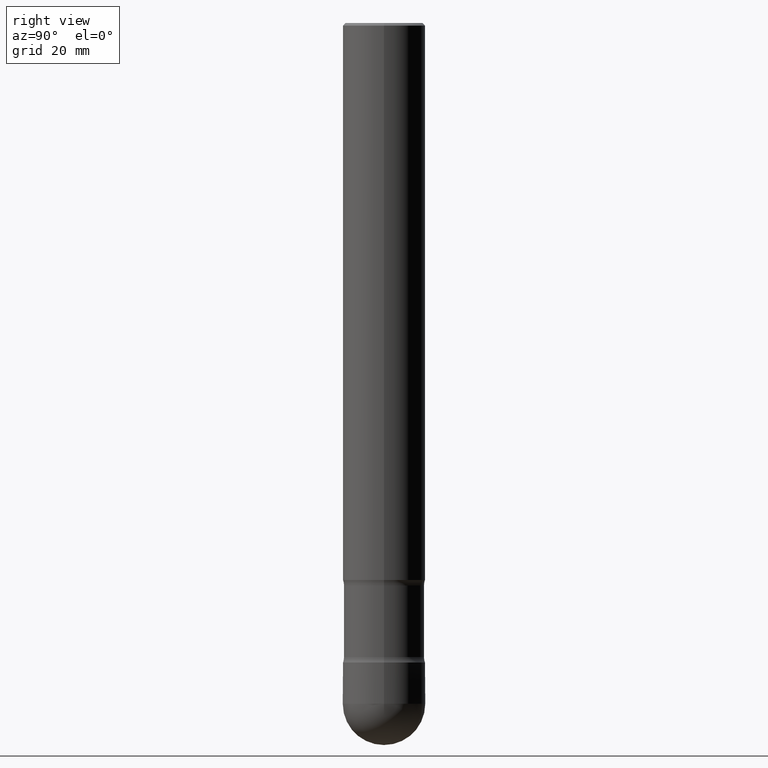
[diagram: clean part render]
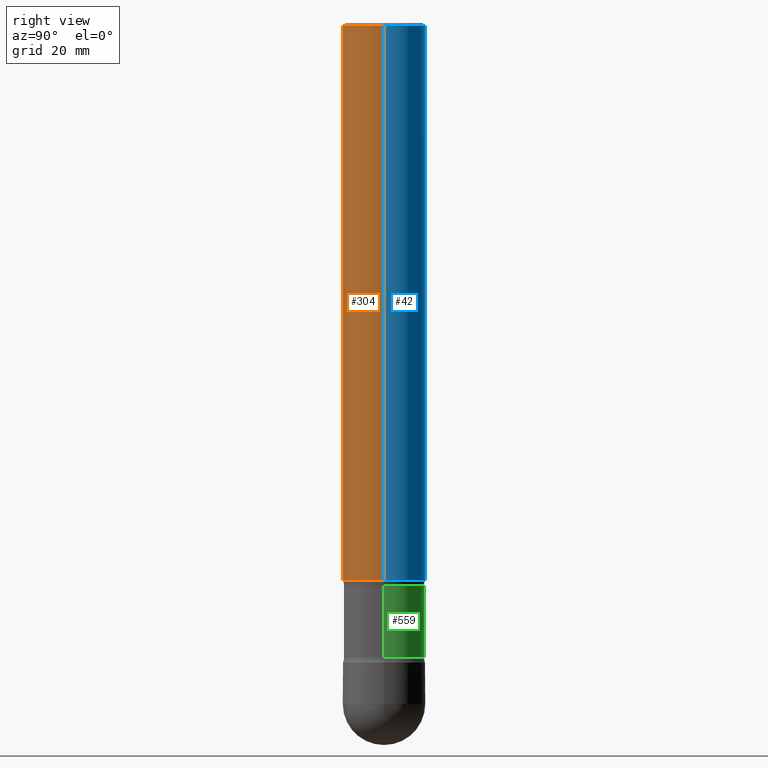
[diagram: same view with three faces highlighted in distinct colors, each labeled with its STEP entity id]
A machine part, right view with three faces highlighted in distinct colors.
Their STEP definitions:

[orange] entity #304 — the highlighted cylindrical surface (partial cylindrical patch) has radius 7.9997 mm, axis along (0, -0, -1).
#13 = EDGE_CURVE ( 'NONE', #127, #541, #102, .T. ) ;
#15 = DIRECTION ( 'NONE',  ( 2.445468806185136597E-29, -3.491481338843145583E-15, -1.000000000000000000 ) ) ;
#22 = DIRECTION ( 'NONE',  ( -1.000000000000000000, 6.982962677686263555E-15, 0.000000000000000000 ) ) ;
#72 = CYLINDRICAL_SURFACE ( 'NONE', #156, 0.3149499999999997857 ) ;
#90 = ORIENTED_EDGE ( 'NONE', *, *, #176, .F. ) ;
#102 = CIRCLE ( 'NONE', #435, 0.3149499999999996191 ) ;
#127 = VERTEX_POINT ( 'NONE', #359 ) ;
#132 = VECTOR ( 'NONE', #154, 39.37007874015748143 ) ;
#137 = CARTESIAN_POINT ( 'NONE',  ( -0.3149500000000000077, -1.264649455742376812E-14, -4.252000000000000668 ) ) ;
#151 = DIRECTION ( 'NONE',  ( -1.000000000000000000, 6.982962677686265922E-15, 0.000000000000000000 ) ) ;
#152 = AXIS2_PLACEMENT_3D ( 'NONE', #285, #15, #22 ) ;
#154 = DIRECTION ( 'NONE',  ( 2.445468806185136877E-29, -3.491481338843145188E-15, -1.000000000000000000 ) ) ;
#156 = AXIS2_PLACEMENT_3D ( 'NONE', #208, #409, #383 ) ;
#176 = EDGE_CURVE ( 'NONE', #127, #436, #206, .T. ) ;
#179 = CIRCLE ( 'NONE', #152, 0.3149500000000000077 ) ;
#194 = EDGE_CURVE ( 'NONE', #436, #513, #179, .T. ) ;
#206 = LINE ( 'NONE', #371, #132 ) ;
#208 = CARTESIAN_POINT ( 'NONE',  ( 1.193853416491521798E-28, -1.704506274809835102E-14, -4.881899999999999906 ) ) ;
#237 = CARTESIAN_POINT ( 'NONE',  ( 4.890937612370220610E-31, -6.982962677686216421E-17, -0.01999999999999978531 ) ) ;
#285 = CARTESIAN_POINT ( 'NONE',  ( 1.039813336389920174E-28, -1.484577865276105642E-14, -4.252000000000000668 ) ) ;
#293 = FACE_OUTER_BOUND ( 'NONE', #431, .T. ) ;
#303 = ORIENTED_EDGE ( 'NONE', *, *, #194, .F. ) ;
#304 = ADVANCED_FACE ( 'NONE', ( #293 ), #72, .T. ) ;
#309 = CARTESIAN_POINT ( 'NONE',  ( -0.3149499999999997857, -1.484577865276106273E-14, -4.881899999999999906 ) ) ;
#315 = DIRECTION ( 'NONE',  ( 2.445468806185136877E-29, -3.491481338843145188E-15, -1.000000000000000000 ) ) ;
#321 = LINE ( 'NONE', #309, #470 ) ;
#358 = CARTESIAN_POINT ( 'NONE',  ( -0.3149499999999996191, 2.129454468560424601E-15, -0.01999999999999978531 ) ) ;
#359 = CARTESIAN_POINT ( 'NONE',  ( 0.3149499999999996191, -2.230543471175003505E-15, -0.01999999999999978531 ) ) ;
#371 = CARTESIAN_POINT ( 'NONE',  ( 0.3149499999999997857, -1.920577659249649162E-14, -4.881899999999999906 ) ) ;
#383 = DIRECTION ( 'NONE',  ( -1.000000000000000000, 6.982962677686268288E-15, 0.000000000000000000 ) ) ;
#409 = DIRECTION ( 'NONE',  ( 2.445468806185136597E-29, -3.491481338843145583E-15, -1.000000000000000000 ) ) ;
#411 = DIRECTION ( 'NONE',  ( 2.445468806185136597E-29, -3.491481338843145583E-15, -1.000000000000000000 ) ) ;
#431 = EDGE_LOOP ( 'NONE', ( #90, #469, #560, #303 ) ) ;
#435 = AXIS2_PLACEMENT_3D ( 'NONE', #237, #411, #151 ) ;
#436 = VERTEX_POINT ( 'NONE', #446 ) ;
#446 = CARTESIAN_POINT ( 'NONE',  ( 0.3149500000000000077, -9.618517984167097304E-15, -4.252000000000000668 ) ) ;
#455 = EDGE_CURVE ( 'NONE', #541, #513, #321, .T. ) ;
#469 = ORIENTED_EDGE ( 'NONE', *, *, #13, .T. ) ;
#470 = VECTOR ( 'NONE', #315, 39.37007874015748143 ) ;
#513 = VERTEX_POINT ( 'NONE', #137 ) ;
#541 = VERTEX_POINT ( 'NONE', #358 ) ;
#560 = ORIENTED_EDGE ( 'NONE', *, *, #455, .T. ) ;

[blue] entity #42 — the highlighted cylindrical surface (partial cylindrical patch) has radius 7.9997 mm, axis along (0, -0, -1).
#42 = ADVANCED_FACE ( 'NONE', ( #84 ), #443, .T. ) ;
#45 = EDGE_LOOP ( 'NONE', ( #478, #46, #173, #88 ) ) ;
#46 = ORIENTED_EDGE ( 'NONE', *, *, #176, .T. ) ;
#48 = CARTESIAN_POINT ( 'NONE',  ( 1.193853416491521798E-28, -1.704506274809835102E-14, -4.881899999999999906 ) ) ;
#53 = AXIS2_PLACEMENT_3D ( 'NONE', #494, #103, #278 ) ;
#84 = FACE_OUTER_BOUND ( 'NONE', #45, .T. ) ;
#88 = ORIENTED_EDGE ( 'NONE', *, *, #455, .F. ) ;
#93 = CARTESIAN_POINT ( 'NONE',  ( 4.890937612370220610E-31, -6.982962677686216421E-17, -0.01999999999999978531 ) ) ;
#103 = DIRECTION ( 'NONE',  ( 2.445468806185136597E-29, -3.491481338843145583E-15, -1.000000000000000000 ) ) ;
#127 = VERTEX_POINT ( 'NONE', #359 ) ;
#132 = VECTOR ( 'NONE', #154, 39.37007874015748143 ) ;
#135 = EDGE_CURVE ( 'NONE', #513, #436, #224, .T. ) ;
#137 = CARTESIAN_POINT ( 'NONE',  ( -0.3149500000000000077, -1.264649455742376812E-14, -4.252000000000000668 ) ) ;
#154 = DIRECTION ( 'NONE',  ( 2.445468806185136877E-29, -3.491481338843145188E-15, -1.000000000000000000 ) ) ;
#173 = ORIENTED_EDGE ( 'NONE', *, *, #135, .F. ) ;
#175 = DIRECTION ( 'NONE',  ( -1.000000000000000000, 6.982962677686268288E-15, 0.000000000000000000 ) ) ;
#176 = EDGE_CURVE ( 'NONE', #127, #436, #206, .T. ) ;
#187 = CIRCLE ( 'NONE', #460, 0.3149499999999996191 ) ;
#192 = DIRECTION ( 'NONE',  ( 2.445468806185136597E-29, -3.491481338843145583E-15, -1.000000000000000000 ) ) ;
#206 = LINE ( 'NONE', #371, #132 ) ;
#224 = CIRCLE ( 'NONE', #53, 0.3149500000000000077 ) ;
#278 = DIRECTION ( 'NONE',  ( -1.000000000000000000, 6.982962677686263555E-15, 0.000000000000000000 ) ) ;
#309 = CARTESIAN_POINT ( 'NONE',  ( -0.3149499999999997857, -1.484577865276106273E-14, -4.881899999999999906 ) ) ;
#315 = DIRECTION ( 'NONE',  ( 2.445468806185136877E-29, -3.491481338843145188E-15, -1.000000000000000000 ) ) ;
#321 = LINE ( 'NONE', #309, #470 ) ;
#358 = CARTESIAN_POINT ( 'NONE',  ( -0.3149499999999996191, 2.129454468560424601E-15, -0.01999999999999978531 ) ) ;
#359 = CARTESIAN_POINT ( 'NONE',  ( 0.3149499999999996191, -2.230543471175003505E-15, -0.01999999999999978531 ) ) ;
#368 = DIRECTION ( 'NONE',  ( -1.000000000000000000, 6.982962677686265922E-15, 0.000000000000000000 ) ) ;
#371 = CARTESIAN_POINT ( 'NONE',  ( 0.3149499999999997857, -1.920577659249649162E-14, -4.881899999999999906 ) ) ;
#436 = VERTEX_POINT ( 'NONE', #446 ) ;
#443 = CYLINDRICAL_SURFACE ( 'NONE', #509, 0.3149499999999997857 ) ;
#446 = CARTESIAN_POINT ( 'NONE',  ( 0.3149500000000000077, -9.618517984167097304E-15, -4.252000000000000668 ) ) ;
#455 = EDGE_CURVE ( 'NONE', #541, #513, #321, .T. ) ;
#460 = AXIS2_PLACEMENT_3D ( 'NONE', #93, #192, #368 ) ;
#470 = VECTOR ( 'NONE', #315, 39.37007874015748143 ) ;
#478 = ORIENTED_EDGE ( 'NONE', *, *, #565, .T. ) ;
#494 = CARTESIAN_POINT ( 'NONE',  ( 1.039813336389920174E-28, -1.484577865276105642E-14, -4.252000000000000668 ) ) ;
#509 = AXIS2_PLACEMENT_3D ( 'NONE', #48, #529, #175 ) ;
#513 = VERTEX_POINT ( 'NONE', #137 ) ;
#529 = DIRECTION ( 'NONE',  ( 2.445468806185136597E-29, -3.491481338843145583E-15, -1.000000000000000000 ) ) ;
#541 = VERTEX_POINT ( 'NONE', #358 ) ;
#565 = EDGE_CURVE ( 'NONE', #541, #127, #187, .T. ) ;

[green] entity #559 — the highlighted cylindrical surface (partial cylindrical patch) has radius 7.8105 mm, axis along (0, -0, -1).
#9 = AXIS2_PLACEMENT_3D ( 'NONE', #184, #450, #49 ) ;
#14 = DIRECTION ( 'NONE',  ( -1.000000000000000000, 6.982962677686269077E-15, 0.000000000000000000 ) ) ;
#47 = VERTEX_POINT ( 'NONE', #526 ) ;
#49 = DIRECTION ( 'NONE',  ( -1.000000000000000000, 6.982962677686268288E-15, 0.000000000000000000 ) ) ;
#63 = CARTESIAN_POINT ( 'NONE',  ( 1.193853416491521798E-28, -1.704506274809835102E-14, -4.881899999999999906 ) ) ;
#74 = LINE ( 'NONE', #193, #471 ) ;
#76 = LINE ( 'NONE', #126, #288 ) ;
#81 = DIRECTION ( 'NONE',  ( 2.445468806185136877E-29, -3.491481338843145188E-15, -1.000000000000000000 ) ) ;
#83 = ORIENTED_EDGE ( 'NONE', *, *, #214, .F. ) ;
#123 = EDGE_LOOP ( 'NONE', ( #561, #270, #83, #419 ) ) ;
#126 = CARTESIAN_POINT ( 'NONE',  ( 0.3074999999999992739, -1.915466588241308928E-14, -4.881899999999999906 ) ) ;
#146 = DIRECTION ( 'NONE',  ( 2.445468806185136597E-29, -3.491481338843145583E-15, -1.000000000000000000 ) ) ;
#150 = CYLINDRICAL_SURFACE ( 'NONE', #434, 0.3074999999999992739 ) ;
#167 = DIRECTION ( 'NONE',  ( -1.000000000000000000, 6.982962677686269077E-15, 0.000000000000000000 ) ) ;
#184 = CARTESIAN_POINT ( 'NONE',  ( 1.050208729167792447E-28, -1.499419731098350864E-14, -4.294508793207993946 ) ) ;
#190 = FACE_OUTER_BOUND ( 'NONE', #123, .T. ) ;
#193 = CARTESIAN_POINT ( 'NONE',  ( -0.3074999999999992739, -1.489780172470982748E-14, -4.881899999999999906 ) ) ;
#214 = EDGE_CURVE ( 'NONE', #516, #47, #308, .T. ) ;
#241 = DIRECTION ( 'NONE',  ( 2.445468806185136597E-29, -3.491481338843145583E-15, -1.000000000000000000 ) ) ;
#246 = CARTESIAN_POINT ( 'NONE',  ( 0.3074999999999993294, -1.705514647122872669E-14, -4.294508793207993946 ) ) ;
#251 = CARTESIAN_POINT ( 'NONE',  ( -0.3074999999999993294, -1.284693628759498668E-14, -4.294508793207993946 ) ) ;
#270 = ORIENTED_EDGE ( 'NONE', *, *, #391, .T. ) ;
#274 = VERTEX_POINT ( 'NONE', #246 ) ;
#288 = VECTOR ( 'NONE', #345, 39.37007874015748143 ) ;
#308 = CIRCLE ( 'NONE', #451, 0.3074999999999992739 ) ;
#318 = EDGE_CURVE ( 'NONE', #342, #516, #74, .T. ) ;
#335 = CARTESIAN_POINT ( 'NONE',  ( 1.183458023713649301E-28, -1.689664408987589879E-14, -4.839391206792005740 ) ) ;
#342 = VERTEX_POINT ( 'NONE', #251 ) ;
#345 = DIRECTION ( 'NONE',  ( 2.445468806185136877E-29, -3.491481338843145188E-15, -1.000000000000000000 ) ) ;
#391 = EDGE_CURVE ( 'NONE', #274, #47, #76, .T. ) ;
#419 = ORIENTED_EDGE ( 'NONE', *, *, #318, .F. ) ;
#434 = AXIS2_PLACEMENT_3D ( 'NONE', #63, #146, #14 ) ;
#450 = DIRECTION ( 'NONE',  ( 2.445468806185136597E-29, -3.491481338843145583E-15, -1.000000000000000000 ) ) ;
#451 = AXIS2_PLACEMENT_3D ( 'NONE', #335, #241, #167 ) ;
#471 = VECTOR ( 'NONE', #81, 39.37007874015748143 ) ;
#498 = CARTESIAN_POINT ( 'NONE',  ( -0.3074999999999992739, -1.474938306648737525E-14, -4.839391206792005740 ) ) ;
#516 = VERTEX_POINT ( 'NONE', #498 ) ;
#518 = CIRCLE ( 'NONE', #9, 0.3074999999999993294 ) ;
#526 = CARTESIAN_POINT ( 'NONE',  ( 0.3074999999999992739, -1.805502383474444197E-14, -4.839391206792005740 ) ) ;
#534 = EDGE_CURVE ( 'NONE', #342, #274, #518, .T. ) ;
#559 = ADVANCED_FACE ( 'NONE', ( #190 ), #150, .T. ) ;
#561 = ORIENTED_EDGE ( 'NONE', *, *, #534, .T. ) ;